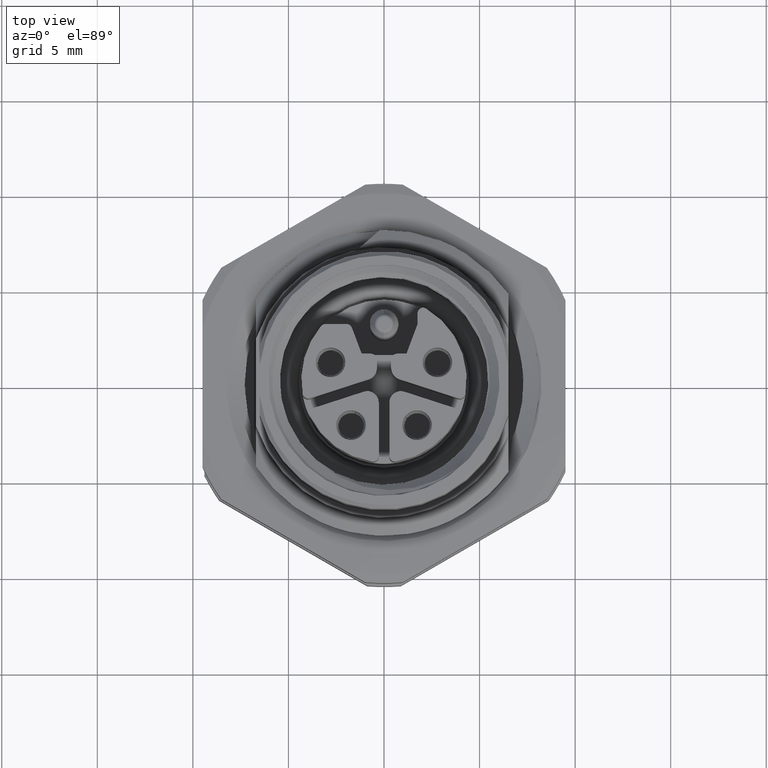
[diagram: clean part render]
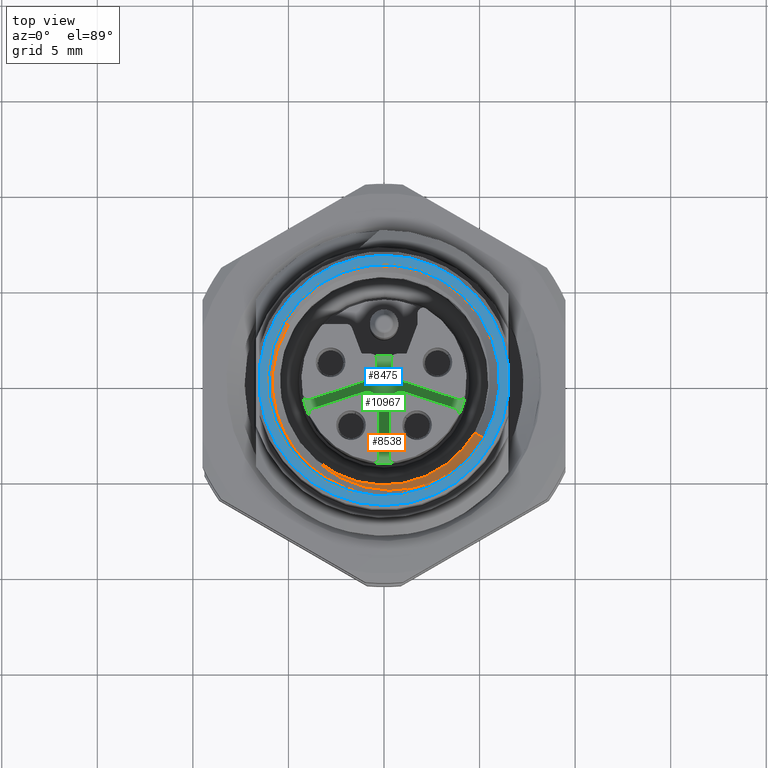
[diagram: same view with three faces highlighted in distinct colors, each labeled with its STEP entity id]
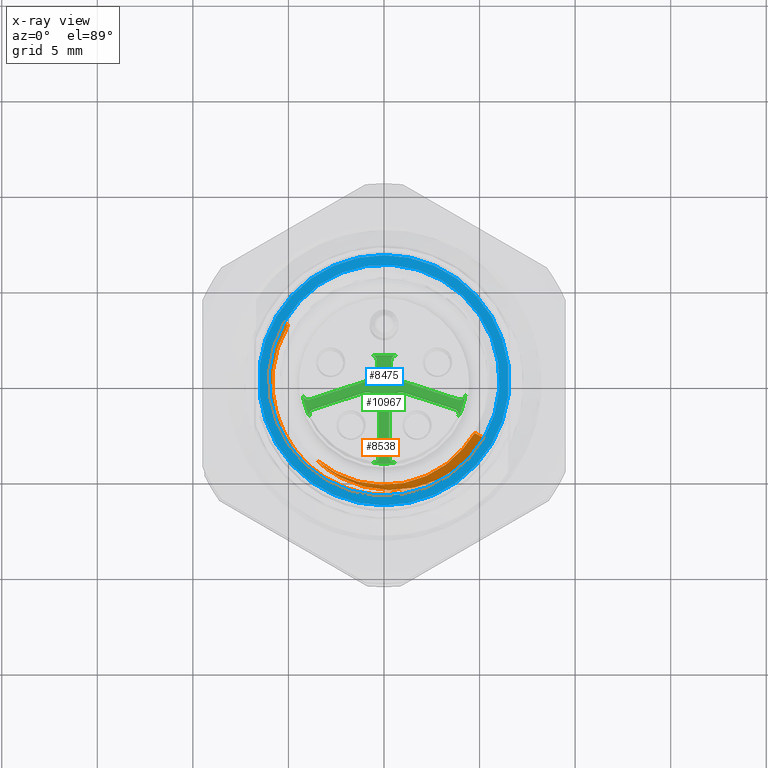
[diagram: x-ray of the same camera — body ghosted, the three highlighted faces saturated]
A machine part, top view with three faces highlighted in distinct colors.
The next image is the same camera in x-ray (body ghosted, the three faces saturated) — at least one of them is partly hidden behind the body in this view.
Their STEP definitions:

[orange] entity #8538 — the highlighted conical surface has half-angle 45 deg.
#866=CARTESIAN_POINT('',(0.E0,0.E0,1.55E1));
#867=DIRECTION('',(0.E0,0.E0,-1.E0));
#868=DIRECTION('',(8.660254037844E-1,-5.E-1,0.E0));
#869=AXIS2_PLACEMENT_3D('',#866,#867,#868);
#871=DIRECTION('',(-6.123724356958E-1,3.535533905933E-1,-7.071067811865E-1));
#872=VECTOR('',#871,8.084849326042E-1);
#873=CARTESIAN_POINT('',(5.239453692896E0,-3.025E0,1.55E1));
#874=LINE('',#873,#872);
#875=DIRECTION('',(6.123724356958E-1,-3.535533905933E-1,-7.071067811866E-1));
#876=VECTOR('',#875,3.601971965201E-1);
#877=CARTESIAN_POINT('',(-5.239453692896E0,3.025E0,1.55E1));
#878=LINE('',#877,#876);
#892=CARTESIAN_POINT('',(-5.018878858332E0,2.897651059888E0,1.524530211978E1));
#893=CARTESIAN_POINT('',(-5.125615047670E0,2.719994357370E0,1.524891001999E1));
#894=CARTESIAN_POINT('',(-5.320128143529E0,2.353002684518E0,1.525612338828E1));
#895=CARTESIAN_POINT('',(-5.551523536220E0,1.773962343081E0,1.526693257988E1));
#896=CARTESIAN_POINT('',(-5.719988179323E0,1.172392919545E0,1.527774160405E1));
#897=CARTESIAN_POINT('',(-5.823303538467E0,5.551949565772E-1,1.528854913724E1));
#898=CARTESIAN_POINT('',(-5.860088083509E0,-6.987892251539E-2,
1.529934310137E1));
#899=CARTESIAN_POINT('',(-5.829879800588E0,-6.963897092731E-1,
1.531013583295E1));
#900=CARTESIAN_POINT('',(-5.732736512441E0,-1.317230720612E0,1.532092857072E1));
#901=CARTESIAN_POINT('',(-5.569775403266E0,-1.924540915110E0,1.533170837221E1));
#902=CARTESIAN_POINT('',(-5.342670763713E0,-2.511887620943E0,1.534248437759E1));
#903=CARTESIAN_POINT('',(-5.053594914909E0,-3.072846974013E0,1.535326356264E1));
#904=CARTESIAN_POINT('',(-4.706163523468E0,-3.600084621399E0,1.536402916669E1));
#905=CARTESIAN_POINT('',(-4.304043272647E0,-4.087999963179E0,1.537478969286E1));
#906=CARTESIAN_POINT('',(-3.851281176139E0,-4.531249571016E0,1.538555352989E1));
#907=CARTESIAN_POINT('',(-3.353531273082E0,-4.924056169775E0,1.539630576620E1));
#908=CARTESIAN_POINT('',(-2.816224497251E0,-5.262108409242E0,1.540705096859E1));
#909=CARTESIAN_POINT('',(-2.244827933722E0,-5.541684672842E0,1.541779913183E1));
#910=CARTESIAN_POINT('',(-1.646356796137E0,-5.759124093190E0,1.542853845512E1));
#911=CARTESIAN_POINT('',(-1.027574940744E0,-5.911929894089E0,1.543926902441E1));
#912=CARTESIAN_POINT('',(-6.057841631163E-1,-5.969535512499E0,
1.544642327285E1));
#913=CARTESIAN_POINT('',(-3.937884581336E-1,-5.987063608334E0,1.545E1));
#948=CARTESIAN_POINT('',(4.157999159150E0,-3.538734659805E0,1.491E1));
#949=CARTESIAN_POINT('',(4.230956695057E0,-3.456151290622E0,1.491203603335E1));
#950=CARTESIAN_POINT('',(4.371924761047E0,-3.286501225060E0,1.491610738756E1));
#951=CARTESIAN_POINT('',(4.567719542634E0,-3.019533679802E0,1.492221144005E1));
#952=CARTESIAN_POINT('',(4.687372043236E0,-2.833794477430E0,1.492628050515E1));
#953=CARTESIAN_POINT('',(4.744359805494E0,-2.739157410834E0,1.492831482167E1));
#1167=CARTESIAN_POINT('',(0.E0,0.E0,1.491E1));
#1168=DIRECTION('',(0.E0,0.E0,1.E0));
#1169=DIRECTION('',(-6.478085016854E-1,-7.618032194367E-1,0.E0));
#1170=AXIS2_PLACEMENT_3D('',#1167,#1168,#1169);
#1222=CARTESIAN_POINT('',(3.998143342096E0,-4.473795906840E0,1.545E1));
#1223=CARTESIAN_POINT('',(3.838615772599E0,-4.599310605173E0,1.543728550896E1));
#1224=CARTESIAN_POINT('',(3.507577326205E0,-4.833478926704E0,1.541183901069E1));
#1225=CARTESIAN_POINT('',(2.980592433939E0,-5.130907467982E0,1.537362135568E1));
#1226=CARTESIAN_POINT('',(2.428731197063E0,-5.371992302191E0,1.533534187003E1));
#1227=CARTESIAN_POINT('',(1.857645934602E0,-5.554724962138E0,1.529698081029E1));
#1228=CARTESIAN_POINT('',(1.274009758727E0,-5.677479449166E0,1.525857445939E1));
#1229=CARTESIAN_POINT('',(6.839120514809E-1,-5.739570965564E0,
1.522011213167E1));
#1230=CARTESIAN_POINT('',(9.328623482333E-2,-5.740848247547E0,
1.518157165612E1));
#1231=CARTESIAN_POINT('',(-4.914147028562E-1,-5.681748370337E0,
1.514296577629E1));
#1232=CARTESIAN_POINT('',(-1.063769611689E0,-5.563478315993E0,
1.510431216307E1));
#1233=CARTESIAN_POINT('',(-1.618077137329E0,-5.387792370558E0,
1.506559199886E1));
#1234=CARTESIAN_POINT('',(-2.148836813456E0,-5.156886933052E0,
1.502678407379E1));
#1235=CARTESIAN_POINT('',(-2.650004771373E0,-4.873941750262E0,
1.498792835247E1));
#1236=CARTESIAN_POINT('',(-3.116650600617E0,-4.542432572735E0,
1.494901179145E1));
#1237=CARTESIAN_POINT('',(-3.401732978218E0,-4.291581710342E0,
1.492301230717E1));
#1238=CARTESIAN_POINT('',(-3.537034419202E0,-4.159445578124E0,1.491E1));
#1240=CARTESIAN_POINT('',(0.E0,0.E0,1.545E1));
#1241=DIRECTION('',(0.E0,0.E0,1.E0));
#1242=DIRECTION('',(-6.563140968893E-2,-9.978439347224E-1,0.E0));
#1243=AXIS2_PLACEMENT_3D('',#1240,#1241,#1242);
#6655=CARTESIAN_POINT('',(5.239453692896E0,-3.025E0,1.55E1));
#6656=CARTESIAN_POINT('',(-5.239453692896E0,3.025E0,1.55E1));
#6657=VERTEX_POINT('',#6655);
#6658=VERTEX_POINT('',#6656);
#6659=VERTEX_POINT('',#1222);
#6660=VERTEX_POINT('',#1238);
#6661=CARTESIAN_POINT('',(-3.937884581336E-1,-5.987063608334E0,1.545E1));
#6662=VERTEX_POINT('',#6661);
#6663=VERTEX_POINT('',#892);
#6664=VERTEX_POINT('',#948);
#6665=VERTEX_POINT('',#953);
#8516=CARTESIAN_POINT('',(0.E0,0.E0,1.5205E1));
#8517=DIRECTION('',(0.E0,0.E0,1.E0));
#8518=DIRECTION('',(-8.660254037844E-1,5.E-1,0.E0));
#8519=AXIS2_PLACEMENT_3D('',#8516,#8517,#8518);
#8520=CONICAL_SURFACE('',#8519,5.755E0,4.5E1);
#8521=ORIENTED_EDGE('',*,*,#8506,.T.);
#8523=ORIENTED_EDGE('',*,*,#8522,.T.);
#8525=ORIENTED_EDGE('',*,*,#8524,.T.);
#8527=ORIENTED_EDGE('',*,*,#8526,.T.);
#8529=ORIENTED_EDGE('',*,*,#8528,.T.);
#8531=ORIENTED_EDGE('',*,*,#8530,.T.);
#8533=ORIENTED_EDGE('',*,*,#8532,.T.);
#8535=ORIENTED_EDGE('',*,*,#8534,.F.);
#8536=EDGE_LOOP('',(#8521,#8523,#8525,#8527,#8529,#8531,#8533,#8535));
#8537=FACE_OUTER_BOUND('',#8536,.F.);
#870=CIRCLE('',#869,6.05E0);
#914=B_SPLINE_CURVE_WITH_KNOTS('',3,(#892,#893,#894,#895,#896,#897,#898,#899,
#900,#901,#902,#903,#904,#905,#906,#907,#908,#909,#910,#911,#912,#913),
.UNSPECIFIED.,.F.,.F.,(4,1,1,1,1,1,1,1,1,1,1,1,1,1,1,1,1,1,1,4),(0.E0,
5.263157894737E-2,1.052631578947E-1,1.578947368421E-1,2.105263157895E-1,
2.631578947368E-1,3.157894736842E-1,3.684210526316E-1,4.210526315789E-1,
4.736842105263E-1,5.263157894737E-1,5.789473684211E-1,6.315789473684E-1,
6.842105263158E-1,7.368421052632E-1,7.894736842105E-1,8.421052631579E-1,
8.947368421053E-1,9.473684210526E-1,1.E0),.UNSPECIFIED.);
#954=B_SPLINE_CURVE_WITH_KNOTS('',3,(#948,#949,#950,#951,#952,#953),
.UNSPECIFIED.,.F.,.F.,(4,1,1,4),(0.E0,3.333333333333E-1,6.666666666667E-1,1.E0),
.UNSPECIFIED.);
#1171=CIRCLE('',#1170,5.46E0);
#1239=B_SPLINE_CURVE_WITH_KNOTS('',3,(#1222,#1223,#1224,#1225,#1226,#1227,#1228,
#1229,#1230,#1231,#1232,#1233,#1234,#1235,#1236,#1237,#1238),.UNSPECIFIED.,.F.,
.F.,(4,1,1,1,1,1,1,1,1,1,1,1,1,1,4),(0.E0,7.142857142857E-2,1.428571428571E-1,
2.142857142857E-1,2.857142857143E-1,3.571428571429E-1,4.285714285714E-1,5.E-1,
5.714285714286E-1,6.428571428571E-1,7.142857142857E-1,7.857142857143E-1,
8.571428571429E-1,9.285714285714E-1,1.E0),.UNSPECIFIED.);
#1244=CIRCLE('',#1243,6.E0);
#8506=EDGE_CURVE('',#6657,#6658,#870,.T.);
#8522=EDGE_CURVE('',#6658,#6663,#878,.T.);
#8524=EDGE_CURVE('',#6663,#6662,#914,.T.);
#8526=EDGE_CURVE('',#6662,#6659,#1244,.T.);
#8528=EDGE_CURVE('',#6659,#6660,#1239,.T.);
#8530=EDGE_CURVE('',#6660,#6664,#1171,.T.);
#8532=EDGE_CURVE('',#6664,#6665,#954,.T.);
#8534=EDGE_CURVE('',#6657,#6665,#874,.T.);
#8538=ADVANCED_FACE('',(#8537),#8520,.F.);

[blue] entity #8475 — the highlighted planar face has unit normal (0, 0, 1).
#806=CARTESIAN_POINT('',(-1.906415557642E-14,1.100669440665E-14,1.6E1));
#807=DIRECTION('',(0.E0,0.E0,1.E0));
#808=DIRECTION('',(9.923664122137E-1,1.233243848962E-1,0.E0));
#809=AXIS2_PLACEMENT_3D('',#806,#807,#808);
#811=DIRECTION('',(0.E0,1.E0,0.E0));
#812=VECTOR('',#811,1.615549442146E0);
#813=CARTESIAN_POINT('',(-6.5E0,-8.077747210731E-1,1.6E1));
#814=LINE('',#813,#812);
#815=DIRECTION('',(0.E0,-1.E0,0.E0));
#816=VECTOR('',#815,1.615549442140E0);
#817=CARTESIAN_POINT('',(6.5E0,8.077747210702E-1,1.6E1));
#818=LINE('',#817,#816);
#819=CARTESIAN_POINT('',(0.E0,0.E0,1.6E1));
#820=DIRECTION('',(0.E0,0.E0,1.E0));
#821=DIRECTION('',(-8.660254037844E-1,5.E-1,0.E0));
#822=AXIS2_PLACEMENT_3D('',#819,#820,#821);
#824=CARTESIAN_POINT('',(0.E0,0.E0,1.6E1));
#825=DIRECTION('',(0.E0,0.E0,1.E0));
#826=DIRECTION('',(8.660254037844E-1,-5.E-1,0.E0));
#827=AXIS2_PLACEMENT_3D('',#824,#825,#826);
#836=CARTESIAN_POINT('',(-1.906415557642E-14,1.100669440665E-14,1.6E1));
#837=DIRECTION('',(0.E0,0.E0,1.E0));
#838=DIRECTION('',(-9.923664122137E-1,-1.233243848967E-1,0.E0));
#839=AXIS2_PLACEMENT_3D('',#836,#837,#838);
#6630=CARTESIAN_POINT('',(-5.239453692896E0,3.025E0,1.6E1));
#6631=CARTESIAN_POINT('',(5.239453692896E0,-3.025E0,1.6E1));
#6632=VERTEX_POINT('',#6630);
#6633=VERTEX_POINT('',#6631);
#6887=CARTESIAN_POINT('',(6.5E0,8.077747210702E-1,1.6E1));
#6888=CARTESIAN_POINT('',(6.5E0,-8.077747210702E-1,1.6E1));
#6889=VERTEX_POINT('',#6887);
#6890=VERTEX_POINT('',#6888);
#7014=CARTESIAN_POINT('',(-6.5E0,-8.077747210731E-1,1.6E1));
#7015=CARTESIAN_POINT('',(-6.5E0,8.077747210731E-1,1.6E1));
#7016=VERTEX_POINT('',#7014);
#7017=VERTEX_POINT('',#7015);
#8457=CARTESIAN_POINT('',(0.E0,0.E0,1.6E1));
#8458=DIRECTION('',(0.E0,0.E0,1.E0));
#8459=DIRECTION('',(5.E-1,8.660254037844E-1,0.E0));
#8460=AXIS2_PLACEMENT_3D('',#8457,#8458,#8459);
#8461=PLANE('',#8460);
#8462=ORIENTED_EDGE('',*,*,#8434,.T.);
#8463=ORIENTED_EDGE('',*,*,#8452,.F.);
#8464=ORIENTED_EDGE('',*,*,#8361,.T.);
#8466=ORIENTED_EDGE('',*,*,#8465,.F.);
#8467=EDGE_LOOP('',(#8462,#8463,#8464,#8466));
#8468=FACE_OUTER_BOUND('',#8467,.F.);
#8470=ORIENTED_EDGE('',*,*,#8469,.T.);
#8472=ORIENTED_EDGE('',*,*,#8471,.T.);
#8473=EDGE_LOOP('',(#8470,#8472));
#8474=FACE_BOUND('',#8473,.F.);
#810=CIRCLE('',#809,6.55E0);
#823=CIRCLE('',#822,6.05E0);
#828=CIRCLE('',#827,6.05E0);
#840=CIRCLE('',#839,6.55E0);
#8361=EDGE_CURVE('',#6889,#6890,#818,.T.);
#8434=EDGE_CURVE('',#7016,#7017,#814,.T.);
#8452=EDGE_CURVE('',#6889,#7017,#810,.T.);
#8465=EDGE_CURVE('',#7016,#6890,#840,.T.);
#8469=EDGE_CURVE('',#6632,#6633,#823,.T.);
#8471=EDGE_CURVE('',#6633,#6632,#828,.T.);
#8475=ADVANCED_FACE('',(#8468,#8474),#8461,.T.);

[green] entity #10967 — the highlighted planar face has unit normal (0, 0, 1).
#2992=CARTESIAN_POINT('',(6.75E-1,1.05E0,1.395E1));
#2993=DIRECTION('',(0.E0,0.E0,-1.E0));
#2994=DIRECTION('',(-1.E0,0.E0,0.E0));
#2995=AXIS2_PLACEMENT_3D('',#2992,#2993,#2994);
#3083=CARTESIAN_POINT('',(3.966424648079E0,-6.841787128474E-1,1.395E1));
#3084=DIRECTION('',(0.E0,0.E0,-1.E0));
#3085=DIRECTION('',(9.854471175351E-1,-1.699822889062E-1,0.E0));
#3086=AXIS2_PLACEMENT_3D('',#3083,#3084,#3085);
#3096=CARTESIAN_POINT('',(0.E0,0.E0,1.395E1));
#3097=DIRECTION('',(0.E0,0.E0,-1.E0));
#3098=DIRECTION('',(9.854471175351E-1,-1.699822889062E-1,0.E0));
#3099=AXIS2_PLACEMENT_3D('',#3096,#3097,#3098);
#3101=DIRECTION('',(9.510565162952E-1,-3.090169943749E-1,0.E0));
#3102=VECTOR('',#3101,2.779382676996E0);
#3103=CARTESIAN_POINT('',(1.060410196625E0,-6.337002706352E-1,1.395E1));
#3104=LINE('',#3103,#3102);
#3105=DIRECTION('',(0.E0,1.E0,0.E0));
#3106=VECTOR('',#3105,2.779382676996E0);
#3107=CARTESIAN_POINT('',(2.75E-1,-3.983716857408E0,1.395E1));
#3108=LINE('',#3107,#3106);
#3109=CARTESIAN_POINT('',(0.E0,0.E0,1.395E1));
#3110=DIRECTION('',(0.E0,0.E0,-1.E0));
#3111=DIRECTION('',(1.428571428571E-1,-9.897433186108E-1,0.E0));
#3112=AXIS2_PLACEMENT_3D('',#3109,#3110,#3111);
#3114=CARTESIAN_POINT('',(0.E0,0.E0,1.395E1));
#3115=DIRECTION('',(0.E0,0.E0,-1.E0));
#3116=DIRECTION('',(0.E0,-1.E0,0.E0));
#3117=AXIS2_PLACEMENT_3D('',#3114,#3115,#3116);
#3119=DIRECTION('',(0.E0,-1.E0,0.E0));
#3120=VECTOR('',#3119,2.779382676996E0);
#3121=CARTESIAN_POINT('',(-2.75E-1,-1.204334180412E0,1.395E1));
#3122=LINE('',#3121,#3120);
#3123=DIRECTION('',(9.510565162952E-1,3.090169943749E-1,0.E0));
#3124=VECTOR('',#3123,2.779382676996E0);
#3125=CARTESIAN_POINT('',(-3.703760202860E0,-1.492576751698E0,1.395E1));
#3126=LINE('',#3125,#3124);
#3127=CARTESIAN_POINT('',(0.E0,0.E0,1.395E1));
#3128=DIRECTION('',(0.E0,0.E0,-1.E0));
#3129=DIRECTION('',(-8.971565477137E-1,-4.417127221334E-1,0.E0));
#3130=AXIS2_PLACEMENT_3D('',#3127,#3128,#3129);
#3132=DIRECTION('',(-9.510565162952E-1,-3.090169943749E-1,0.E0));
#3133=VECTOR('',#3132,3.242845922980E0);
#3134=CARTESIAN_POINT('',(-7.895898033750E-1,3.259883260431E-2,1.395E1));
#3135=LINE('',#3134,#3133);
#3136=DIRECTION('',(0.E0,-1.E0,0.E0));
#3137=VECTOR('',#3136,4.467672576186E-1);
#3138=CARTESIAN_POINT('',(-3.75E-1,1.05E0,1.395E1));
#3139=LINE('',#3138,#3137);
#3140=DIRECTION('',(1.E0,0.E0,0.E0));
#3141=VECTOR('',#3140,1.35E0);
#3142=CARTESIAN_POINT('',(-6.75E-1,1.35E0,1.395E1));
#3143=LINE('',#3142,#3141);
#3144=DIRECTION('',(0.E0,1.E0,0.E0));
#3145=VECTOR('',#3144,4.467672576186E-1);
#3146=CARTESIAN_POINT('',(3.75E-1,6.032327423814E-1,1.395E1));
#3147=LINE('',#3146,#3145);
#3148=DIRECTION('',(-9.510565162952E-1,3.090169943749E-1,0.E0));
#3149=VECTOR('',#3148,3.242845922980E0);
#3150=CARTESIAN_POINT('',(3.873719549766E0,-9.694956677360E-1,1.395E1));
#3151=LINE('',#3150,#3149);
#3152=CARTESIAN_POINT('',(3.611055104548E0,-1.777893706587E0,1.395E1));
#3153=DIRECTION('',(0.E0,0.E0,-1.E0));
#3154=DIRECTION('',(3.090169943749E-1,9.510565162952E-1,0.E0));
#3155=AXIS2_PLACEMENT_3D('',#3152,#3153,#3154);
#3195=CARTESIAN_POINT('',(5.75E-1,-3.983716857408E0,1.395E1));
#3196=DIRECTION('',(0.E0,0.E0,-1.E0));
#3197=DIRECTION('',(1.428571428571E-1,-9.897433186108E-1,0.E0));
#3198=AXIS2_PLACEMENT_3D('',#3195,#3196,#3197);
#3208=CARTESIAN_POINT('',(8.75E-1,-1.204334180412E0,1.395E1));
#3209=DIRECTION('',(0.E0,0.E0,-1.E0));
#3210=DIRECTION('',(-1.E0,0.E0,0.E0));
#3211=AXIS2_PLACEMENT_3D('',#3208,#3209,#3210);
#3373=CARTESIAN_POINT('',(-5.75E-1,-3.983716857408E0,1.395E1));
#3374=DIRECTION('',(0.E0,0.E0,-1.E0));
#3375=DIRECTION('',(1.E0,0.E0,0.E0));
#3376=AXIS2_PLACEMENT_3D('',#3373,#3374,#3375);
#3416=CARTESIAN_POINT('',(-3.611055104548E0,-1.777893706587E0,1.395E1));
#3417=DIRECTION('',(0.E0,0.E0,-1.E0));
#3418=DIRECTION('',(-8.971565477137E-1,-4.417127221334E-1,0.E0));
#3419=AXIS2_PLACEMENT_3D('',#3416,#3417,#3418);
#3429=CARTESIAN_POINT('',(-8.75E-1,-1.204334180412E0,1.395E1));
#3430=DIRECTION('',(0.E0,0.E0,-1.E0));
#3431=DIRECTION('',(-3.090169943749E-1,9.510565162952E-1,0.E0));
#3432=AXIS2_PLACEMENT_3D('',#3429,#3430,#3431);
#3594=CARTESIAN_POINT('',(-3.966424648079E0,-6.841787128474E-1,1.395E1));
#3595=DIRECTION('',(0.E0,0.E0,-1.E0));
#3596=DIRECTION('',(3.090169943749E-1,-9.510565162952E-1,0.E0));
#3597=AXIS2_PLACEMENT_3D('',#3594,#3595,#3596);
#3607=CARTESIAN_POINT('',(-9.75E-1,6.032327423814E-1,1.395E1));
#3608=DIRECTION('',(0.E0,0.E0,-1.E0));
#3609=DIRECTION('',(1.E0,0.E0,0.E0));
#3610=AXIS2_PLACEMENT_3D('',#3607,#3608,#3609);
#3620=CARTESIAN_POINT('',(-6.75E-1,1.05E0,1.395E1));
#3621=DIRECTION('',(0.E0,0.E0,-1.E0));
#3622=DIRECTION('',(0.E0,1.E0,0.E0));
#3623=AXIS2_PLACEMENT_3D('',#3620,#3621,#3622);
#3633=CARTESIAN_POINT('',(9.75E-1,6.032327423814E-1,1.395E1));
#3634=DIRECTION('',(0.E0,0.E0,-1.E0));
#3635=DIRECTION('',(-3.090169943749E-1,-9.510565162952E-1,0.E0));
#3636=AXIS2_PLACEMENT_3D('',#3633,#3634,#3635);
#7067=CARTESIAN_POINT('',(3.873719549766E0,-9.694956677360E-1,1.395E1));
#7069=VERTEX_POINT('',#7067);
#7072=CARTESIAN_POINT('',(4.262058783339E0,-7.351733995193E-1,1.395E1));
#7073=VERTEX_POINT('',#7072);
#7078=CARTESIAN_POINT('',(3.703760202860E0,-1.492576751698E0,1.395E1));
#7079=VERTEX_POINT('',#7078);
#7080=CARTESIAN_POINT('',(3.880202068862E0,-1.910407523227E0,1.395E1));
#7081=VERTEX_POINT('',#7080);
#7083=CARTESIAN_POINT('',(2.75E-1,-3.983716857408E0,1.395E1));
#7085=VERTEX_POINT('',#7083);
#7088=CARTESIAN_POINT('',(6.178571428571E-1,-4.280639852992E0,1.395E1));
#7089=VERTEX_POINT('',#7088);
#7094=CARTESIAN_POINT('',(-2.75E-1,-3.983716857408E0,1.395E1));
#7095=VERTEX_POINT('',#7094);
#7096=CARTESIAN_POINT('',(-6.178571428571E-1,-4.280639852992E0,1.395E1));
#7097=VERTEX_POINT('',#7096);
#7099=CARTESIAN_POINT('',(-3.703760202860E0,-1.492576751698E0,1.395E1));
#7101=VERTEX_POINT('',#7099);
#7104=CARTESIAN_POINT('',(-3.880202068862E0,-1.910407523227E0,1.395E1));
#7105=VERTEX_POINT('',#7104);
#7110=CARTESIAN_POINT('',(-3.873719549766E0,-9.694956677360E-1,1.395E1));
#7111=VERTEX_POINT('',#7110);
#7112=CARTESIAN_POINT('',(-4.262058783339E0,-7.351733995193E-1,1.395E1));
#7113=VERTEX_POINT('',#7112);
#7118=CARTESIAN_POINT('',(3.75E-1,1.05E0,1.395E1));
#7119=VERTEX_POINT('',#7118);
#7120=CARTESIAN_POINT('',(6.75E-1,1.35E0,1.395E1));
#7121=VERTEX_POINT('',#7120);
#7123=CARTESIAN_POINT('',(-3.75E-1,1.05E0,1.395E1));
#7125=VERTEX_POINT('',#7123);
#7128=CARTESIAN_POINT('',(-6.75E-1,1.35E0,1.395E1));
#7129=VERTEX_POINT('',#7128);
#7134=CARTESIAN_POINT('',(2.75E-1,-1.204334180412E0,1.395E1));
#7135=VERTEX_POINT('',#7134);
#7136=CARTESIAN_POINT('',(1.060410196625E0,-6.337002706352E-1,1.395E1));
#7137=VERTEX_POINT('',#7136);
#7142=CARTESIAN_POINT('',(-1.060410196625E0,-6.337002706352E-1,1.395E1));
#7143=VERTEX_POINT('',#7142);
#7144=CARTESIAN_POINT('',(-2.75E-1,-1.204334180412E0,1.395E1));
#7145=VERTEX_POINT('',#7144);
#7150=CARTESIAN_POINT('',(7.895898033750E-1,3.259883260431E-2,1.395E1));
#7151=VERTEX_POINT('',#7150);
#7152=CARTESIAN_POINT('',(3.75E-1,6.032327423814E-1,1.395E1));
#7153=VERTEX_POINT('',#7152);
#7158=CARTESIAN_POINT('',(-3.75E-1,6.032327423814E-1,1.395E1));
#7159=VERTEX_POINT('',#7158);
#7160=CARTESIAN_POINT('',(-7.895898033750E-1,3.259883260431E-2,1.395E1));
#7161=VERTEX_POINT('',#7160);
#7164=CARTESIAN_POINT('',(0.E0,-4.325E0,1.395E1));
#7165=VERTEX_POINT('',#7164);
#10918=CARTESIAN_POINT('',(0.E0,0.E0,1.395E1));
#10919=DIRECTION('',(0.E0,0.E0,1.E0));
#10920=DIRECTION('',(1.E0,0.E0,0.E0));
#10921=AXIS2_PLACEMENT_3D('',#10918,#10919,#10920);
#10922=PLANE('',#10921);
#10923=ORIENTED_EDGE('',*,*,#10596,.T.);
#10925=ORIENTED_EDGE('',*,*,#10924,.F.);
#10927=ORIENTED_EDGE('',*,*,#10926,.F.);
#10929=ORIENTED_EDGE('',*,*,#10928,.F.);
#10931=ORIENTED_EDGE('',*,*,#10930,.F.);
#10933=ORIENTED_EDGE('',*,*,#10932,.F.);
#10934=ORIENTED_EDGE('',*,*,#10588,.T.);
#10935=ORIENTED_EDGE('',*,*,#10634,.T.);
#10937=ORIENTED_EDGE('',*,*,#10936,.F.);
#10939=ORIENTED_EDGE('',*,*,#10938,.F.);
#10941=ORIENTED_EDGE('',*,*,#10940,.F.);
#10943=ORIENTED_EDGE('',*,*,#10942,.F.);
#10945=ORIENTED_EDGE('',*,*,#10944,.F.);
#10946=ORIENTED_EDGE('',*,*,#10626,.T.);
#10948=ORIENTED_EDGE('',*,*,#10947,.F.);
#10950=ORIENTED_EDGE('',*,*,#10949,.F.);
#10952=ORIENTED_EDGE('',*,*,#10951,.F.);
#10954=ORIENTED_EDGE('',*,*,#10953,.F.);
#10956=ORIENTED_EDGE('',*,*,#10955,.F.);
#10957=ORIENTED_EDGE('',*,*,#10762,.T.);
#10958=ORIENTED_EDGE('',*,*,#10785,.F.);
#10960=ORIENTED_EDGE('',*,*,#10959,.F.);
#10962=ORIENTED_EDGE('',*,*,#10961,.F.);
#10963=ORIENTED_EDGE('',*,*,#10910,.F.);
#10964=ORIENTED_EDGE('',*,*,#10899,.F.);
#10965=EDGE_LOOP('',(#10923,#10925,#10927,#10929,#10931,#10933,#10934,#10935,
#10937,#10939,#10941,#10943,#10945,#10946,#10948,#10950,#10952,#10954,#10956,
#10957,#10958,#10960,#10962,#10963,#10964));
#10966=FACE_OUTER_BOUND('',#10965,.F.);
#2996=CIRCLE('',#2995,3.E-1);
#3087=CIRCLE('',#3086,3.E-1);
#3100=CIRCLE('',#3099,4.325E0);
#3113=CIRCLE('',#3112,4.325E0);
#3118=CIRCLE('',#3117,4.325E0);
#3131=CIRCLE('',#3130,4.325E0);
#3156=CIRCLE('',#3155,3.E-1);
#3199=CIRCLE('',#3198,3.E-1);
#3212=CIRCLE('',#3211,6.E-1);
#3377=CIRCLE('',#3376,3.E-1);
#3420=CIRCLE('',#3419,3.E-1);
#3433=CIRCLE('',#3432,6.E-1);
#3598=CIRCLE('',#3597,3.E-1);
#3611=CIRCLE('',#3610,6.E-1);
#3624=CIRCLE('',#3623,3.E-1);
#3637=CIRCLE('',#3636,6.E-1);
#10588=EDGE_CURVE('',#7089,#7165,#3113,.T.);
#10596=EDGE_CURVE('',#7073,#7081,#3100,.T.);
#10626=EDGE_CURVE('',#7105,#7113,#3131,.T.);
#10634=EDGE_CURVE('',#7165,#7097,#3118,.T.);
#10762=EDGE_CURVE('',#7129,#7121,#3143,.T.);
#10785=EDGE_CURVE('',#7119,#7121,#2996,.T.);
#10899=EDGE_CURVE('',#7073,#7069,#3087,.T.);
#10910=EDGE_CURVE('',#7069,#7151,#3151,.T.);
#10924=EDGE_CURVE('',#7079,#7081,#3156,.T.);
#10926=EDGE_CURVE('',#7137,#7079,#3104,.T.);
#10928=EDGE_CURVE('',#7135,#7137,#3212,.T.);
#10930=EDGE_CURVE('',#7085,#7135,#3108,.T.);
#10932=EDGE_CURVE('',#7089,#7085,#3199,.T.);
#10936=EDGE_CURVE('',#7095,#7097,#3377,.T.);
#10938=EDGE_CURVE('',#7145,#7095,#3122,.T.);
#10940=EDGE_CURVE('',#7143,#7145,#3433,.T.);
#10942=EDGE_CURVE('',#7101,#7143,#3126,.T.);
#10944=EDGE_CURVE('',#7105,#7101,#3420,.T.);
#10947=EDGE_CURVE('',#7111,#7113,#3598,.T.);
#10949=EDGE_CURVE('',#7161,#7111,#3135,.T.);
#10951=EDGE_CURVE('',#7159,#7161,#3611,.T.);
#10953=EDGE_CURVE('',#7125,#7159,#3139,.T.);
#10955=EDGE_CURVE('',#7129,#7125,#3624,.T.);
#10959=EDGE_CURVE('',#7153,#7119,#3147,.T.);
#10961=EDGE_CURVE('',#7151,#7153,#3637,.T.);
#10967=ADVANCED_FACE('',(#10966),#10922,.T.);